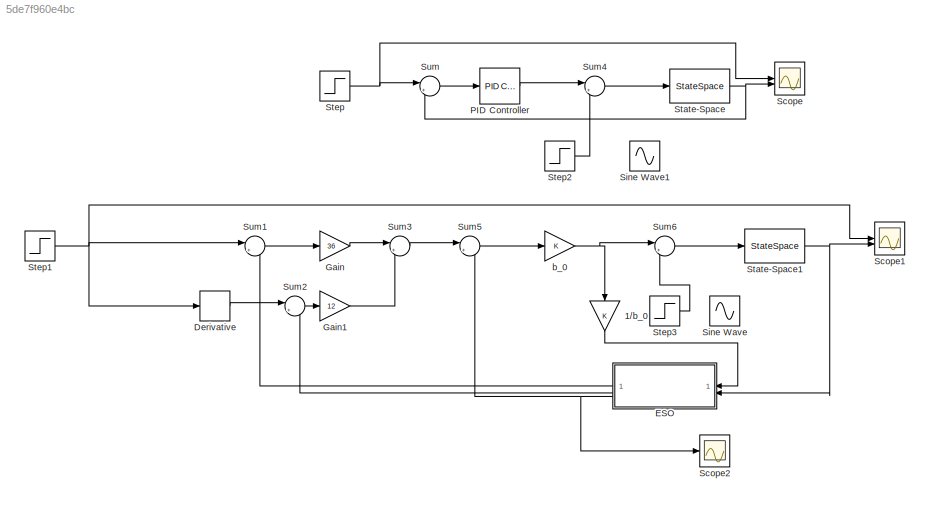
MODEL slx_5de7f960e4bc
KIND model
CONFIG AbsTol = auto
CONFIG EnableMultiTasking = off
CONFIG FixedStep = auto
CONFIG MaxStep = auto
CONFIG MinStep = auto
CONFIG RelTol = 1e-3
CONFIG SampleTimeConstraint = Unconstrained
CONFIG SolverName = VariableStepAuto
CONFIG StartTime = 0.0
CONFIG StopTime = 5
BLOCK [Gain] 1//b_0
  NameLocation = left
BLOCK [Derivative] Derivative
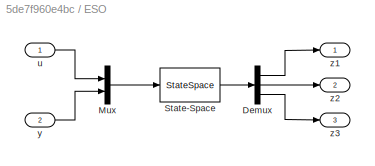
BLOCK [SubSystem] ESO
BLOCK [Demux] ESO/Demux
  Outputs = 3
BLOCK [Mux] ESO/Mux
  DisplayOption = bar
  Inputs = 2
BLOCK [StateSpace] ESO/State-Space
  A = [-72 1 0; -1728 0 1; -13824 0 0]
  B = [0 72; 1 1728; 0 13824]
  C = [1 0 0; 0 1 0; 0 0 1]
  D = [0 0; 0 0; 0 0]
  InitialCondition = 0
  NameLocation = top
BLOCK [Inport] ESO/u
BLOCK [Inport] ESO/y
  Port = 2
BLOCK [Outport] ESO/z1
BLOCK [Outport] ESO/z2
  Port = 2
BLOCK [Outport] ESO/z3
  Port = 3
BLOCK [Gain] Gain
  Gain = 36
BLOCK [Gain] Gain1
  Gain = 12
BLOCK [Reference] PID Controller  REF=slpidlib/PID Controller
  LibrarySourceBlock = simulink/Continuous/PID Controller
  SourceBlock = slpidlib/PID Controller
  SourceType = PID 1dof
BLOCK [Scope] Scope
  Floating = off
  NumInputPorts = 2
  ScopeSpecificationString = Simulink.scopes.TimeScopeBlockCfg('CurrentConfiguration', extmgr.ConfigurationSet(extmgr.Configuration('Core','General UI',true),extmgr.Configuration('Core','Source UI',true),extmgr.Configuration('Sources','WiredSimulink',true),extmgr.Configuration('Visuals','Time Domain',true,'SerializedDisplays',{struct('MinYLimReal','-0.14274','MaxYLimReal','1.28469','YLabelReal','','MinYLimMag','0.00000','MaxY...<+1485ch>
BLOCK [Scope] Scope1
  Floating = off
  NumInputPorts = 2
  ScopeSpecificationString = Simulink.scopes.TimeScopeBlockCfg('CurrentConfiguration', extmgr.ConfigurationSet(extmgr.Configuration('Core','General UI',true),extmgr.Configuration('Core','Source UI',true),extmgr.Configuration('Sources','WiredSimulink',true,'DataLoggingVariableName','ScopeData1'),extmgr.Configuration('Visuals','Time Domain',true,'SerializedDisplays',{struct('MinYLimReal','-0.125','MaxYLimReal','1.125','YLabelRe...<+1552ch>
BLOCK [Scope] Scope2
  Floating = off
  NumInputPorts = 1
  ScopeSpecificationString = Simulink.scopes.TimeScopeBlockCfg('CurrentConfiguration', extmgr.ConfigurationSet(extmgr.Configuration('Core','General UI',true),extmgr.Configuration('Core','Source UI',true),extmgr.Configuration('Sources','WiredSimulink',true,'DataLoggingVariableName','ScopeData2'),extmgr.Configuration('Visuals','Time Domain',true,'SerializedDisplays',{struct('MinYLimReal','-0.0625','MaxYLimReal','0.5625','YLabel...<+1461ch>
BLOCK [Sin] Sine Wave
  Frequency = 6
  SampleTime = 0
BLOCK [Sin] Sine Wave1
  Frequency = 6
  NameLocation = top
  SampleTime = 0
BLOCK [StateSpace] State-Space
  A = [0 1; 0 0]
  B = [0; 1]
  C = [1 0]
  D = 0
  InitialCondition = 0
BLOCK [StateSpace] State-Space1
  A = [0 1; 0 0]
  B = [0; 1]
  C = [1 0]
  D = 0
  InitialCondition = 0
BLOCK [Step] Step
  SampleTime = 0
  Time = 0
BLOCK [Step] Step1
  SampleTime = 0
  Time = 0
BLOCK [Step] Step2
  After = 0.5
  SampleTime = 0
  Time = 0
BLOCK [Step] Step3
  After = 0.5
  SampleTime = 0
  Time = 0
BLOCK [Sum] Sum
  Inputs = |+-
BLOCK [Sum] Sum1
  Inputs = |+-
BLOCK [Sum] Sum2
  Inputs = |+-
BLOCK [Sum] Sum3
  Inputs = |++
BLOCK [Sum] Sum4
  Inputs = |++
BLOCK [Sum] Sum5
  Inputs = |+-
BLOCK [Sum] Sum6
  Inputs = |++
BLOCK [Gain] b_0
LINE 1//b_0:1 -> ESO:1
LINE Derivative:1 -> Sum2:1
LINE ESO/Demux:1 -> ESO/z1:1
LINE ESO/Demux:2 -> ESO/z2:1
LINE ESO/Demux:3 -> ESO/z3:1
LINE ESO/Mux:1 -> ESO/State-Space:1
LINE ESO/State-Space:1 -> ESO/Demux:1
LINE ESO/u:1 -> ESO/Mux:1
LINE ESO/y:1 -> ESO/Mux:2
LINE ESO:1 -> Sum1:2
LINE ESO:2 -> Sum2:2
NET ESO:3 -> Scope2:1, Sum5:2
LINE Gain1:1 -> Sum3:2
LINE Gain:1 -> Sum3:1
LINE PID Controller:1 -> Sum4:1
NET State-Space1:1 -> ESO:2, Scope1:2
NET State-Space:1 -> Scope:2, Sum:2
NET Step1:1 -> Derivative:1, Scope1:1, Sum1:1
LINE Step2:1 -> Sum4:2
LINE Step3:1 -> Sum6:2
NET Step:1 -> Scope:1, Sum:1
LINE Sum1:1 -> Gain:1
LINE Sum2:1 -> Gain1:1
LINE Sum3:1 -> Sum5:1
LINE Sum4:1 -> State-Space:1
LINE Sum5:1 -> b_0:1
LINE Sum6:1 -> State-Space1:1
LINE Sum:1 -> PID Controller:1
NET b_0:1 -> 1//b_0:1, Sum6:1
note: NET lines group one-source signal fan-out (src -> all destinations, sorted); 1:1 wires keep LINE
